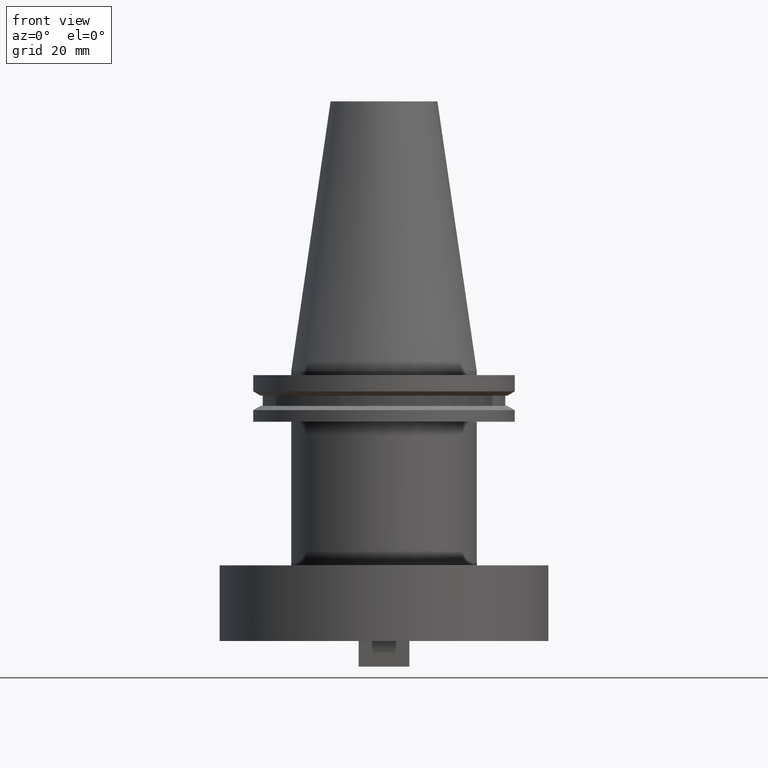
[diagram: clean part render]
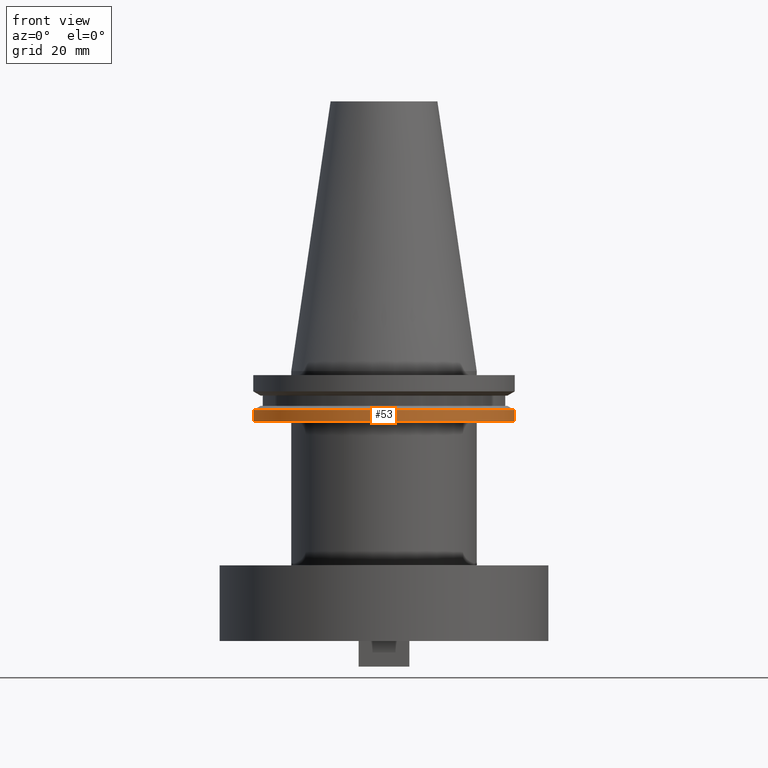
[diagram: same view with one face highlighted and labeled with its STEP entity id]
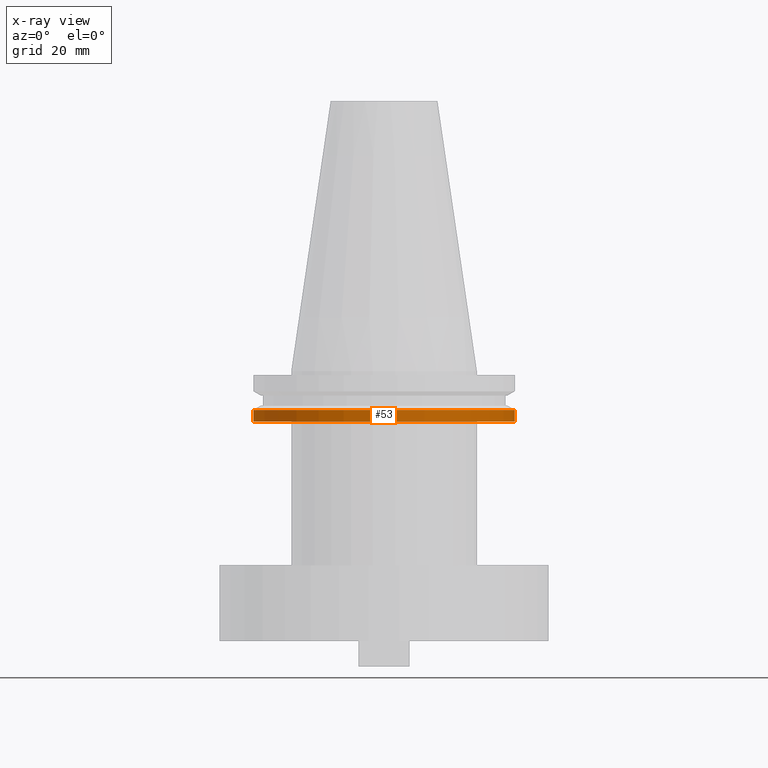
[diagram: x-ray of the same camera — body ghosted, the highlighted face saturated]
A machine part, front view. The second image highlights one B-rep face of the part: STEP entity #53.
The next image is the same camera in x-ray: the body ghosted, the highlighted face saturated — about 0% of this face is hidden behind the body in this view.
In plain terms, the highlighted cylindrical surface (partial cylindrical patch) has radius 49.215 mm, axis along (-0, -0, 1).
Its self-contained STEP definition (entity closure, byte-faithful):
#43 = CYLINDRICAL_SURFACE ( 'NONE', #610, 49.21499999999998920 ) ;
#49 = FACE_OUTER_BOUND ( 'NONE', #777, .T. ) ;
#53 = ADVANCED_FACE ( 'NONE', ( #49 ), #43, .T. ) ;
#105 = VECTOR ( 'NONE', #660, 1000.000000000000000 ) ;
#150 = CIRCLE ( 'NONE', #612, 49.21499999999998920 ) ;
#164 = EDGE_CURVE ( 'NONE', #941, #822, #217, .T. ) ;
#168 = DIRECTION ( 'NONE',  ( 1.000000000000000000, 0.000000000000000000, 0.000000000000000000 ) ) ;
#195 = ORIENTED_EDGE ( 'NONE', *, *, #164, .T. ) ;
#206 = DIRECTION ( 'NONE',  ( -0.000000000000000000, -0.000000000000000000, 1.000000000000000000 ) ) ;
#217 = LINE ( 'NONE', #562, #105 ) ;
#253 = CARTESIAN_POINT ( 'NONE',  ( 49.21499999999998920, 0.000000000000000000, -19.04999999999999716 ) ) ;
#270 = CARTESIAN_POINT ( 'NONE',  ( 0.000000000000000000, 0.000000000000000000, -19.04999999999999716 ) ) ;
#282 = CARTESIAN_POINT ( 'NONE',  ( 0.000000000000000000, 0.000000000000000000, 101.5999999999999943 ) ) ;
#290 = VERTEX_POINT ( 'NONE', #448 ) ;
#297 = DIRECTION ( 'NONE',  ( -0.000000000000000000, -0.000000000000000000, 1.000000000000000000 ) ) ;
#340 = EDGE_CURVE ( 'NONE', #367, #290, #926, .T. ) ;
#357 = DIRECTION ( 'NONE',  ( -0.000000000000000000, -0.000000000000000000, 1.000000000000000000 ) ) ;
#367 = VERTEX_POINT ( 'NONE', #671 ) ;
#448 = CARTESIAN_POINT ( 'NONE',  ( -49.21499999999998920, 6.027099222003697037E-15, -14.65761014474876944 ) ) ;
#481 = ORIENTED_EDGE ( 'NONE', *, *, #751, .F. ) ;
#489 = EDGE_CURVE ( 'NONE', #367, #941, #150, .T. ) ;
#532 = ORIENTED_EDGE ( 'NONE', *, *, #489, .T. ) ;
#561 = CARTESIAN_POINT ( 'NONE',  ( 49.21499999999998920, 0.000000000000000000, -14.65761014474876944 ) ) ;
#562 = CARTESIAN_POINT ( 'NONE',  ( 49.21499999999998920, 0.000000000000000000, 101.5999999999999943 ) ) ;
#591 = VECTOR ( 'NONE', #357, 1000.000000000000000 ) ;
#610 = AXIS2_PLACEMENT_3D ( 'NONE', #282, #297, #954 ) ;
#612 = AXIS2_PLACEMENT_3D ( 'NONE', #270, #924, #168 ) ;
#660 = DIRECTION ( 'NONE',  ( -0.000000000000000000, -0.000000000000000000, 1.000000000000000000 ) ) ;
#671 = CARTESIAN_POINT ( 'NONE',  ( -49.21499999999998920, 6.027099222003697037E-15, -19.04999999999999716 ) ) ;
#731 = CIRCLE ( 'NONE', #930, 49.21499999999998920 ) ;
#751 = EDGE_CURVE ( 'NONE', #290, #822, #731, .T. ) ;
#762 = CARTESIAN_POINT ( 'NONE',  ( -49.21499999999998920, 6.027099222003697037E-15, 101.5999999999999943 ) ) ;
#777 = EDGE_LOOP ( 'NONE', ( #955, #532, #195, #481 ) ) ;
#822 = VERTEX_POINT ( 'NONE', #561 ) ;
#924 = DIRECTION ( 'NONE',  ( -0.000000000000000000, -0.000000000000000000, 1.000000000000000000 ) ) ;
#926 = LINE ( 'NONE', #762, #591 ) ;
#930 = AXIS2_PLACEMENT_3D ( 'NONE', #960, #206, #1070 ) ;
#941 = VERTEX_POINT ( 'NONE', #253 ) ;
#954 = DIRECTION ( 'NONE',  ( 1.000000000000000000, 0.000000000000000000, 0.000000000000000000 ) ) ;
#955 = ORIENTED_EDGE ( 'NONE', *, *, #340, .F. ) ;
#960 = CARTESIAN_POINT ( 'NONE',  ( 0.000000000000000000, 0.000000000000000000, -14.65761014474876944 ) ) ;
#1070 = DIRECTION ( 'NONE',  ( 1.000000000000000000, 0.000000000000000000, 0.000000000000000000 ) ) ;